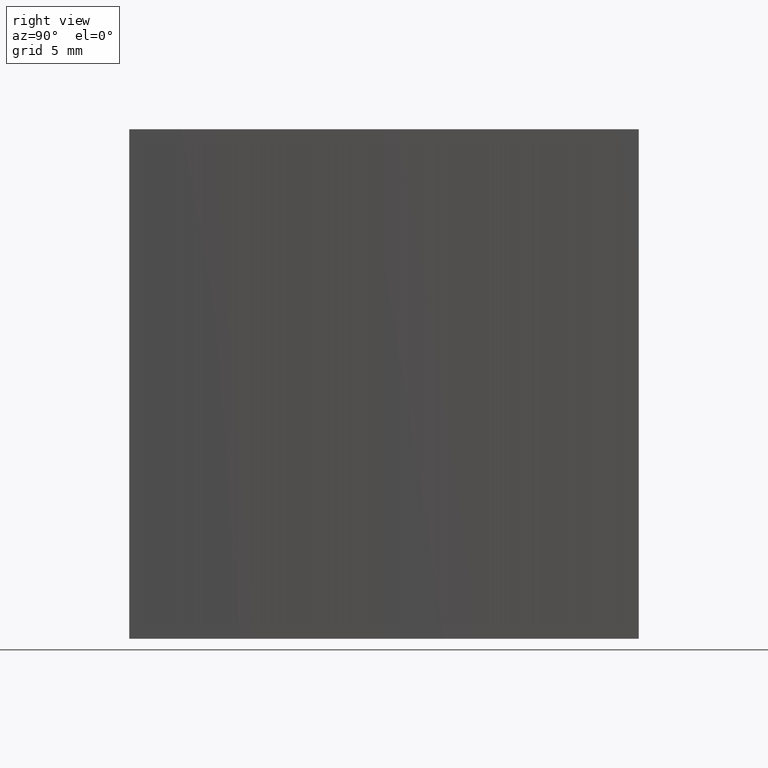
[diagram: clean part render]
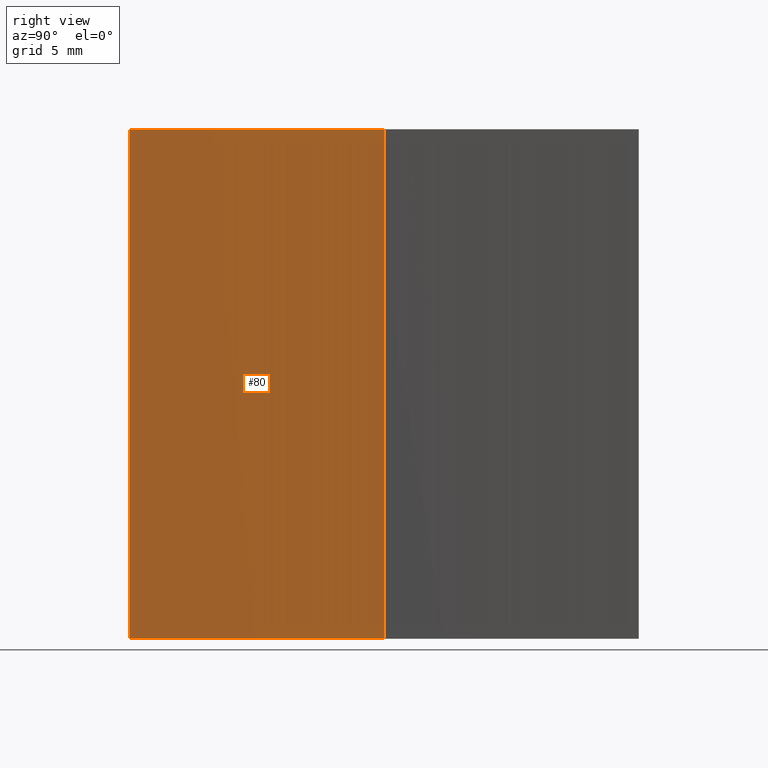
[diagram: same view with one face highlighted and labeled with its STEP entity id]
A machine part, right view. The second image highlights one B-rep face of the part: STEP entity #80.
In plain terms, the highlighted cylindrical surface (partial cylindrical patch) has radius 500 mm, axis along (-0, -0, -1).
Its self-contained STEP definition (entity closure, byte-faithful):
#6 = VECTOR ( 'NONE', #162, 1000.000000000000000 ) ;
#14 = EDGE_CURVE ( 'NONE', #182, #213, #148, .T. ) ;
#19 = ORIENTED_EDGE ( 'NONE', *, *, #233, .F. ) ;
#20 = CARTESIAN_POINT ( 'NONE',  ( 290.8634100413992800, 54.35792926776753800, 25.00000000000000000 ) ) ;
#25 = EDGE_CURVE ( 'NONE', #135, #199, #120, .T. ) ;
#36 = CYLINDRICAL_SURFACE ( 'NONE', #44, 500.0000000000001100 ) ;
#44 = AXIS2_PLACEMENT_3D ( 'NONE', #237, #129, #107 ) ;
#45 = CARTESIAN_POINT ( 'NONE',  ( 290.8634100413992800, 54.35792926776753800, 0.0000000000000000000 ) ) ;
#64 = CARTESIAN_POINT ( 'NONE',  ( 290.7071356197043900, 66.85792926776608200, 25.00000000000000000 ) ) ;
#80 = ADVANCED_FACE ( 'NONE', ( #108 ), #36, .F. ) ;
#88 = DIRECTION ( 'NONE',  ( -0.0000000000000000000, -0.0000000000000000000, -1.000000000000000000 ) ) ;
#89 = DIRECTION ( 'NONE',  ( 1.000000000000000000, 0.0000000000000000000, 0.0000000000000000000 ) ) ;
#107 = DIRECTION ( 'NONE',  ( -1.000000000000000000, 0.0000000000000000000, 0.0000000000000000000 ) ) ;
#108 = FACE_OUTER_BOUND ( 'NONE', #131, .T. ) ;
#114 = CARTESIAN_POINT ( 'NONE',  ( 290.7071356197043900, 66.85792926776608200, 25.00000000000000000 ) ) ;
#118 = ORIENTED_EDGE ( 'NONE', *, *, #184, .T. ) ;
#120 = CIRCLE ( 'NONE', #228, 500.0000000000001100 ) ;
#129 = DIRECTION ( 'NONE',  ( -0.0000000000000000000, -0.0000000000000000000, -1.000000000000000000 ) ) ;
#131 = EDGE_LOOP ( 'NONE', ( #19, #221, #118, #141 ) ) ;
#135 = VERTEX_POINT ( 'NONE', #216 ) ;
#137 = DIRECTION ( 'NONE',  ( -0.0000000000000000000, -0.0000000000000000000, -1.000000000000000000 ) ) ;
#141 = ORIENTED_EDGE ( 'NONE', *, *, #14, .T. ) ;
#148 = CIRCLE ( 'NONE', #151, 500.0000000000001100 ) ;
#151 = AXIS2_PLACEMENT_3D ( 'NONE', #209, #88, #205 ) ;
#162 = DIRECTION ( 'NONE',  ( -0.0000000000000000000, -0.0000000000000000000, -1.000000000000000000 ) ) ;
#168 = VECTOR ( 'NONE', #177, 1000.000000000000000 ) ;
#177 = DIRECTION ( 'NONE',  ( -0.0000000000000000000, -0.0000000000000000000, -1.000000000000000000 ) ) ;
#182 = VERTEX_POINT ( 'NONE', #45 ) ;
#184 = EDGE_CURVE ( 'NONE', #135, #182, #194, .T. ) ;
#185 = CARTESIAN_POINT ( 'NONE',  ( 790.7071356197045600, 66.85792926776608200, 25.00000000000000000 ) ) ;
#194 = LINE ( 'NONE', #20, #6 ) ;
#199 = VERTEX_POINT ( 'NONE', #114 ) ;
#205 = DIRECTION ( 'NONE',  ( 1.000000000000000000, 0.0000000000000000000, 0.0000000000000000000 ) ) ;
#209 = CARTESIAN_POINT ( 'NONE',  ( 790.7071356197045600, 66.85792926776608200, 0.0000000000000000000 ) ) ;
#213 = VERTEX_POINT ( 'NONE', #214 ) ;
#214 = CARTESIAN_POINT ( 'NONE',  ( 290.7071356197043900, 66.85792926776608200, 0.0000000000000000000 ) ) ;
#216 = CARTESIAN_POINT ( 'NONE',  ( 290.8634100413992800, 54.35792926776753800, 25.00000000000000000 ) ) ;
#221 = ORIENTED_EDGE ( 'NONE', *, *, #25, .F. ) ;
#228 = AXIS2_PLACEMENT_3D ( 'NONE', #185, #137, #89 ) ;
#233 = EDGE_CURVE ( 'NONE', #199, #213, #234, .T. ) ;
#234 = LINE ( 'NONE', #64, #168 ) ;
#237 = CARTESIAN_POINT ( 'NONE',  ( 790.7071356197045600, 66.85792926776608200, 25.00000000000000000 ) ) ;